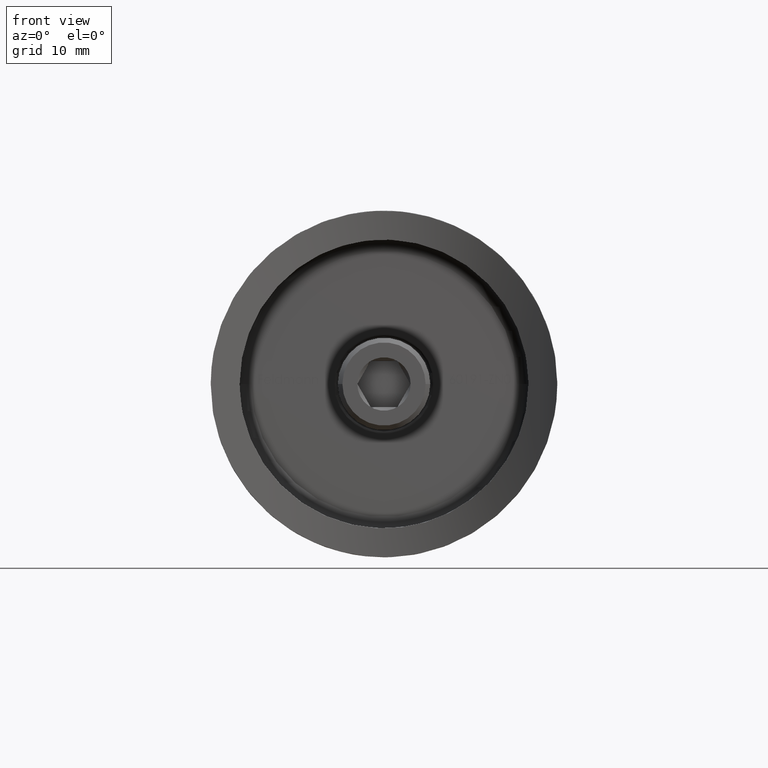
[diagram: clean part render]
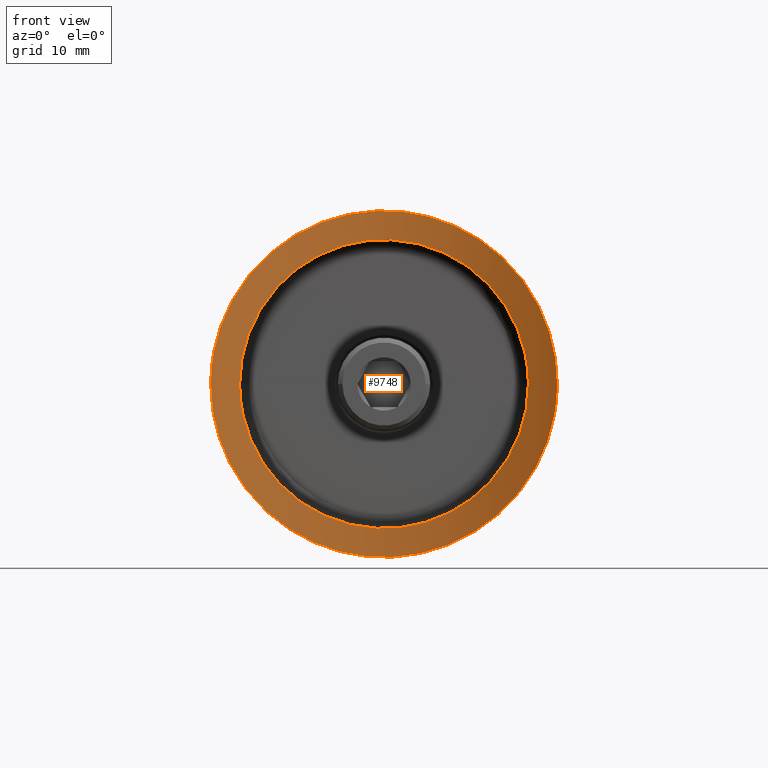
[diagram: same view with one face highlighted and labeled with its STEP entity id]
A machine part, front view. The second image highlights one B-rep face of the part: STEP entity #9748.
In plain terms, the highlighted cylindrical surface (partial cylindrical patch) has radius 21.2 mm, axis along (0, 0, 1).
Its self-contained STEP definition (entity closure, byte-faithful):
#99 = CARTESIAN_POINT ( 'NONE',  ( -9.247360983637173959, -2.103467087323838136, 11.84956196566221642 ) ) ;
#106 = CARTESIAN_POINT ( 'NONE',  ( -6.793287085050308427, -1.112716904579033494, -13.38246005369015279 ) ) ;
#199 = CARTESIAN_POINT ( 'NONE',  ( -1.036103655200694362, -0.0007744303460661392836, -14.99890547146903863 ) ) ;
#241 = CARTESIAN_POINT ( 'NONE',  ( -14.79309002106216475, -6.013676570960109657, 2.533536598195614165 ) ) ;
#284 = VERTEX_POINT ( 'NONE', #4385 ) ;
#296 = CARTESIAN_POINT ( 'NONE',  ( 11.30263597532529296, -3.260684741531254538, -9.872927816602436124 ) ) ;
#526 = CARTESIAN_POINT ( 'NONE',  ( 0.8364876894773611848, 0.0004464050162464019349, 12.50075710310782995 ) ) ;
#560 = VERTEX_POINT ( 'NONE', #10472 ) ;
#685 = CARTESIAN_POINT ( 'NONE',  ( -0.8589641378155458140, -0.0004523624545173044798, 12.49923279307553514 ) ) ;
#735 = CARTESIAN_POINT ( 'NONE',  ( 11.81956933681401090, -3.600006339396276012, 4.088991191509609990 ) ) ;
#820 = CARTESIAN_POINT ( 'NONE',  ( 13.41760145868459908, -4.783764563336502462, 6.722883565555990870 ) ) ;
#843 = ORIENTED_EDGE ( 'NONE', *, *, #7407, .T. ) ;
#1183 = CARTESIAN_POINT ( 'NONE',  ( -11.32118218139259191, -3.259145242482941018, 9.886381310683775681 ) ) ;
#1238 = CARTESIAN_POINT ( 'NONE',  ( -4.984309481093156080, -0.5884660627468247807, -14.15652354885131992 ) ) ;
#1369 = CARTESIAN_POINT ( 'NONE',  ( -9.977806632513969376, -2.478707036671748742, 11.24068842236448162 ) ) ;
#1382 = CARTESIAN_POINT ( 'NONE',  ( 10.98660614811948832, -3.064888731167211944, -10.22337507026552039 ) ) ;
#1469 = CARTESIAN_POINT ( 'NONE',  ( 13.99789364625555876, -5.276420133939977219, -5.412116096702529688 ) ) ;
#1518 = CARTESIAN_POINT ( 'NONE',  ( 1.266205355041107206, -0.03630233887626374556, -14.94866007219333781 ) ) ;
#1643 = CARTESIAN_POINT ( 'NONE',  ( 9.914473190374422984, -2.458995964235112019, 7.623289312353929148 ) ) ;
#1692 = CARTESIAN_POINT ( 'NONE',  ( -3.304356569119990983, -0.2552316089212756101, 12.06248241720208014 ) ) ;
#1703 = CARTESIAN_POINT ( 'NONE',  ( -12.50000000000000178, -4.077208171562678451, 1.530791408032014810E-15 ) ) ;
#1798 = CARTESIAN_POINT ( 'NONE',  ( 6.330762071407218805, -0.9547413152989590035, 10.80890744331405884 ) ) ;
#1807 = CARTESIAN_POINT ( 'NONE',  ( 9.921695963143253749, -2.457881125248752685, -7.646057704508282704 ) ) ;
#1850 = CARTESIAN_POINT ( 'NONE',  ( 5.616086685430340175, -0.7426856589785431062, 11.19739653768654719 ) ) ;
#1954 = CARTESIAN_POINT ( 'NONE',  ( -9.132977711352268102, -2.065621050082288246, -8.543844657703633771 ) ) ;
#2008 = VERTEX_POINT ( 'NONE', #2639 ) ;
#2256 = CARTESIAN_POINT ( 'NONE',  ( -1.005100079473335128, 0.0009410588674151550452, 15.00133003043902846 ) ) ;
#2263 = CARTESIAN_POINT ( 'NONE',  ( -10.98134059977257238, -3.061700629048576872, -10.22902124559073656 ) ) ;
#2305 = CARTESIAN_POINT ( 'NONE',  ( -6.790344218099431117, -1.094644267676415872, 13.41143013350196078 ) ) ;
#2312 = EDGE_LOOP ( 'NONE', ( #6485, #843 ) ) ;
#2349 = CARTESIAN_POINT ( 'NONE',  ( 1.050626157901719093, -0.01991855300508594065, 14.97188250659245234 ) ) ;
#2357 = CARTESIAN_POINT ( 'NONE',  ( -14.78614450649412682, -6.007473384273446015, -2.536635718239778292 ) ) ;
#2390 = DIRECTION ( 'NONE',  ( 1.000000000000000000, 0.000000000000000000, 0.000000000000000000 ) ) ;
#2401 = CARTESIAN_POINT ( 'NONE',  ( -13.99802631601504643, -5.276502016985037180, -5.412135210787639039 ) ) ;
#2438 = CARTESIAN_POINT ( 'NONE',  ( -13.62292504831276752, -4.954430224184656950, 6.297059881936443837 ) ) ;
#2443 = CARTESIAN_POINT ( 'NONE',  ( 14.97320424526893312, -6.191719379153870051, -1.029740930339562155 ) ) ;
#2543 = CARTESIAN_POINT ( 'NONE',  ( 14.58376615802573539, -5.812953263413651150, -3.518041817528173354 ) ) ;
#2589 = CARTESIAN_POINT ( 'NONE',  ( 9.973264478600162519, -2.487903390809075077, -11.21432605455396647 ) ) ;
#2630 = CARTESIAN_POINT ( 'NONE',  ( 14.79249594511518850, -6.013103956490017055, -2.536521336118941594 ) ) ;
#2639 = CARTESIAN_POINT ( 'NONE',  ( -15.00000000000000355, -6.218678295958000035, 1.799096609950244379E-15 ) ) ;
#2773 = CARTESIAN_POINT ( 'NONE',  ( 6.332477147048833466, -0.9555130321071549915, -10.80731723092417340 ) ) ;
#2818 = CARTESIAN_POINT ( 'NONE',  ( 10.82385150507188776, -2.964161621337963126, 6.303516461398699811 ) ) ;
#2826 = CARTESIAN_POINT ( 'NONE',  ( 10.82311573601574395, -2.963573911942929850, -6.305744600801080679 ) ) ;
#2926 = CARTESIAN_POINT ( 'NONE',  ( 8.572815172963569097, -1.808186575324009171, -9.105778739206952466 ) ) ;
#2970 = CARTESIAN_POINT ( 'NONE',  ( -9.917886729184012040, -2.455915680248248023, 7.650612990462792418 ) ) ;
#3041 = B_SPLINE_CURVE_WITH_KNOTS ( 'NONE', 3,
 ( #13375, #9041, #10063, #5560, #13471, #2357, #7793, #5745, #4540, #12316, #2401, #13519, #8909, #14418, #3470, #5652, #2263, #11146, #4502, #6761, #11241, #106, #7893, #4597, #1238, #8993, #3762, #5883, #199, #6953, #7988, #6858, #1518, #13660, #8119, #9277, #9138, #6905, #11527, #4735, #5978, #11478, #3563, #2589, #9093, #1382, #296, #9229, #11334, #8027, #3712, #1469, #4693, #10252, #10205, #2543, #8172, #2630, #7057, #2443, #12643, #12460 ),
 .UNSPECIFIED., .F., .F.,
 ( 4, 2, 2, 2, 2, 2, 2, 2, 2, 2, 2, 2, 2, 2, 2, 2, 2, 2, 2, 2, 2, 2, 2, 2, 2, 2, 2, 2, 2, 2, 4 ),
 ( 0.04870013911608973151, 0.05021988693317920582, 0.05097976084172394645, 0.05173963475026868014, 0.05325938256735816140, 0.05477913038444763572, 0.05781862601862658435, 0.05933837383571606561, 0.06085812165280553299, 0.06389761728698448162, 0.06541736510407396288, 0.06693711292116343026, 0.06845686073825291151, 0.06997660855534237889, 0.07301610418952132753, 0.07377597809806606122, 0.07453585200661080878, 0.07605559982370027616, 0.07757534764078974354, 0.07909509545787921092, 0.08213459109205815956, 0.08365433890914764081, 0.08517408672623710819, 0.08669383454332657557, 0.08821358236041607070, 0.09125307799459500546, 0.09277282581168447284, 0.09353269972022920653, 0.09429257362877394022, 0.09581232144586340760, 0.09733206926295287498 ),
 .UNSPECIFIED. ) ;
#3070 = CARTESIAN_POINT ( 'NONE',  ( -10.15029678505969812, -2.586093745295868107, -7.306357179505572397 ) ) ;
#3120 = CARTESIAN_POINT ( 'NONE',  ( -11.67547662238571959, -3.503719972888457157, -4.482977201973310066 ) ) ;
#3154 = CARTESIAN_POINT ( 'NONE',  ( 14.00305171526047232, -5.280944613301205237, 5.398952671795225200 ) ) ;
#3168 = CARTESIAN_POINT ( 'NONE',  ( -9.400507852522066443, -2.196003224771105433, -8.248663482543525660 ) ) ;
#3364 = CARTESIAN_POINT ( 'NONE',  ( 0.5320355225887009043, -0.0004841991488968378833, 14.99931566491221879 ) ) ;
#3462 = CARTESIAN_POINT ( 'NONE',  ( 5.699236886631593002, -0.7790748501655614389, 13.87729466244316079 ) ) ;
#3470 = CARTESIAN_POINT ( 'NONE',  ( -11.90151835592003060, -3.652250506909898498, -9.142201468282934229 ) ) ;
#3505 = CARTESIAN_POINT ( 'NONE',  ( -4.005033879452522427, -0.3759934740618178228, 14.46412745145087264 ) ) ;
#3563 = CARTESIAN_POINT ( 'NONE',  ( 9.241290292428232078, -2.115788787511440727, -11.82479035539435586 ) ) ;
#3712 = CARTESIAN_POINT ( 'NONE',  ( 13.43377556196558231, -4.792094488283050069, -6.742535343252500368 ) ) ;
#3762 = CARTESIAN_POINT ( 'NONE',  ( -3.535509830042500301, -0.2908456476318196371, -14.58623087621891123 ) ) ;
#3948 = CARTESIAN_POINT ( 'NONE',  ( 12.16703553193700316, -3.838737251354632285, 2.895587000546334444 ) ) ;
#4000 = CARTESIAN_POINT ( 'NONE',  ( -9.412360545666038192, -2.193905633885578688, 8.263981835864758096 ) ) ;
#4046 = CARTESIAN_POINT ( 'NONE',  ( 7.677584592285631615, -1.426185435189055273, 9.897763553005118453 ) ) ;
#4093 = CARTESIAN_POINT ( 'NONE',  ( 15.00000000000000178, -6.218678295958002700, 1.034344060573792135 ) ) ;
#4100 = CARTESIAN_POINT ( 'NONE',  ( -12.41440993766445189, -4.013857359421159288, 1.679475638683213923 ) ) ;
#4153 = CARTESIAN_POINT ( 'NONE',  ( -7.657783215492891316, -1.428566676989442730, -9.887831381975157541 ) ) ;
#4181 = CARTESIAN_POINT ( 'NONE',  ( 15.00000000000000711, -6.218678295957958291, 1.012818476025527101E-14 ) ) ;
#4225 = CARTESIAN_POINT ( 'NONE',  ( 10.32371503841146776, -2.679498512906845153, 10.89239739286136910 ) ) ;
#4236 = CARTESIAN_POINT ( 'NONE',  ( 12.33187756241080990, -3.955435823175239118, 2.084699858219267288 ) ) ;
#4244 = CARTESIAN_POINT ( 'NONE',  ( -12.50000000000001066, -4.077208171562496375, -0.8487430364366631563 ) ) ;
#4278 = CARTESIAN_POINT ( 'NONE',  ( 8.856195033793833105, -1.933633055654745192, 12.11594143917158739 ) ) ;
#4298 = CARTESIAN_POINT ( 'NONE',  ( -4.084322186922474174, -0.3932434817293214979, -11.82121978265571194 ) ) ;
#4385 = CARTESIAN_POINT ( 'NONE',  ( 12.49999999999999822, -4.077208171562670458, -2.539735531791139987E-15 ) ) ;
#4496 = CARTESIAN_POINT ( 'NONE',  ( 5.000757390721830120, -0.5968245632355041463, 14.14407592239056832 ) ) ;
#4502 = CARTESIAN_POINT ( 'NONE',  ( -9.258651972981740030, -2.108956545266313043, -11.84073691738115741 ) ) ;
#4535 = CARTESIAN_POINT ( 'NONE',  ( -5.427672039333993226, -0.7011243682898478102, 13.99229017852160695 ) ) ;
#4540 = CARTESIAN_POINT ( 'NONE',  ( -14.46426186399570391, -5.699511624603945670, -4.003697393095872137 ) ) ;
#4597 = CARTESIAN_POINT ( 'NONE',  ( -5.448681550746202085, -0.7067432484951983174, -13.98405675780512247 ) ) ;
#4638 = CARTESIAN_POINT ( 'NONE',  ( 6.830061313045299620, -1.108259818986123024, 13.39104156783523614 ) ) ;
#4685 = CARTESIAN_POINT ( 'NONE',  ( -4.961759016571151371, -0.5830047866001240031, 14.16447057848799851 ) ) ;
#4693 = CARTESIAN_POINT ( 'NONE',  ( 14.16667982109497181, -5.427063201692310379, -4.954909019241491741 ) ) ;
#4735 = CARTESIAN_POINT ( 'NONE',  ( 6.805837395638246079, -1.099760610903794289, -13.40379174466695567 ) ) ;
#4974 = CARTESIAN_POINT ( 'NONE',  ( -1.660420830508476886, -0.06098600344633579862, -12.39633220497209720 ) ) ;
#5061 = CARTESIAN_POINT ( 'NONE',  ( -12.06293509169512213, -3.765906836595545926, 3.302612425637190707 ) ) ;
#5069 = CARTESIAN_POINT ( 'NONE',  ( 8.277841407775241578, -1.680032598148464729, -9.374915397881402157 ) ) ;
#5115 = CARTESIAN_POINT ( 'NONE',  ( -7.659400604678979541, -1.419461113605394953, 9.910966035266708829 ) ) ;
#5122 = CARTESIAN_POINT ( 'NONE',  ( 12.41455994250098627, -4.013974898359021104, -1.677415078488689204 ) ) ;
#5157 = ORIENTED_EDGE ( 'NONE', *, *, #11328, .T. ) ;
#5161 = CARTESIAN_POINT ( 'NONE',  ( 11.67798937154660166, -3.505372729526122111, 4.476561059971755796 ) ) ;
#5171 = CARTESIAN_POINT ( 'NONE',  ( 4.111227917153257749, -0.3985133992347169585, -11.81195145108149269 ) ) ;
#5210 = CARTESIAN_POINT ( 'NONE',  ( -11.67712929274375178, -3.504802613424481184, 4.478832813254037148 ) ) ;
#5254 = CARTESIAN_POINT ( 'NONE',  ( 12.47839444042782375, -4.061377960056150371, 0.8447536554562086186 ) ) ;
#5347 = CARTESIAN_POINT ( 'NONE',  ( 12.71281392838358570, -4.231452424652480282, 7.975591587867550736 ) ) ;
#5560 = CARTESIAN_POINT ( 'NONE',  ( -14.89630095163684409, -6.115519239895382597, -1.779256862648070703 ) ) ;
#5652 = CARTESIAN_POINT ( 'NONE',  ( -11.29874611460838629, -3.258205561143912021, -9.877465418851025802 ) ) ;
#5696 = CARTESIAN_POINT ( 'NONE',  ( -14.48773947438725429, -5.720170169769271951, 4.015306362516247063 ) ) ;
#5741 = CARTESIAN_POINT ( 'NONE',  ( -15.00000000000000355, -6.218678295958000035, 1.799096609950244379E-15 ) ) ;
#5742 = B_SPLINE_CURVE_WITH_KNOTS ( 'NONE', 3,
 ( #13950, #10698, #5122, #9409, #11664, #11823, #2826, #1807, #11763, #2926, #5069, #6122, #12881, #2773, #9466, #9620, #5171, #7346, #12932, #12782, #10743, #10593, #13905, #4974, #8450, #11720, #9718, #4298, #11963, #11863, #9819, #6466, #4153, #7638, #6421, #1954, #3168, #8750, #3070, #7587, #14209, #3120, #10891, #12066, #10841, #7544, #4244, #8654 ),
 .UNSPECIFIED., .F., .F.,
 ( 4, 2, 2, 2, 2, 2, 2, 2, 2, 2, 2, 2, 2, 2, 2, 2, 2, 2, 2, 2, 2, 2, 2, 4 ),
 ( 3.442122328764663224E-18, 0.002502947823133303430, 0.005005895646266603390, 0.007508843469399903783, 0.01001179129253320331, 0.01126326520409984960, 0.01251473911566650110, 0.01501768693879979889, 0.01626916085036644866, 0.01752063476193310015, 0.02002358258506640315, 0.02127505649663305118, 0.02252653040819970268, 0.02377800431976635417, 0.02502947823133300220, 0.02753242605446630520, 0.02878389996603295323, 0.03003537387759959779, 0.03128684778916623888, 0.03253832170073288343, 0.03504126952386617949, 0.03629274343543282405, 0.03754421734699946861, 0.04004716517013276467 ),
 .UNSPECIFIED. ) ;
#5745 = CARTESIAN_POINT ( 'NONE',  ( -14.58918023883314952, -5.817685145585125284, -3.522469803270723343 ) ) ;
#5786 = CARTESIAN_POINT ( 'NONE',  ( 5.469162458992211207, -0.7161850585369443634, 13.96963564937746582 ) ) ;
#5883 = CARTESIAN_POINT ( 'NONE',  ( -2.043395127223919250, -0.07478288130568813696, -14.89484407722329884 ) ) ;
#5978 = CARTESIAN_POINT ( 'NONE',  ( 7.657464313295867520, -1.412054961352990246, -12.93443060298194425 ) ) ;
#6113 = CARTESIAN_POINT ( 'NONE',  ( -11.36141052027945619, -3.300455032068370986, 5.228158650827129605 ) ) ;
#6122 = CARTESIAN_POINT ( 'NONE',  ( 7.658181626422162935, -1.428706670570210058, -9.887565487340259196 ) ) ;
#6165 = CARTESIAN_POINT ( 'NONE',  ( -10.80199183774451654, -2.956988026750464016, 6.303179214469232683 ) ) ;
#6315 = CARTESIAN_POINT ( 'NONE',  ( 8.292590753440132190, -1.679334220573263536, 9.387140151929679988 ) ) ;
#6421 = CARTESIAN_POINT ( 'NONE',  ( -8.570666225862407117, -1.807232788485996000, -9.107812243117962225 ) ) ;
#6466 = CARTESIAN_POINT ( 'NONE',  ( -7.332818909338671531, -1.305368122057328995, -10.13134071192462748 ) ) ;
#6485 = ORIENTED_EDGE ( 'NONE', *, *, #10428, .T. ) ;
#6502 = CARTESIAN_POINT ( 'NONE',  ( 11.32166461596433393, -3.259760859046703096, 9.885017094419540129 ) ) ;
#6751 = CARTESIAN_POINT ( 'NONE',  ( -15.00000000000000711, -6.218678295957998259, 0.5077510589398881446 ) ) ;
#6761 = CARTESIAN_POINT ( 'NONE',  ( -8.067187927978842765, -1.590101400784742491, -12.65511361902888687 ) ) ;
#6802 = CARTESIAN_POINT ( 'NONE',  ( -3.510902656690084722, -0.2866766079428031966, 14.59220396397109454 ) ) ;
#6858 = CARTESIAN_POINT ( 'NONE',  ( 1.008248499793803044, -0.02243173643572620238, -14.96828248208485235 ) ) ;
#6900 = CARTESIAN_POINT ( 'NONE',  ( -7.657603035913631118, -1.412317715533601303, 12.93394447506753409 ) ) ;
#6905 = CARTESIAN_POINT ( 'NONE',  ( 4.966684803398809578, -0.5841713210080407004, -14.16277482169131297 ) ) ;
#6953 = CARTESIAN_POINT ( 'NONE',  ( 0.2390648060514578566, 0.0001860897397400146185, -15.00026300690780268 ) ) ;
#7057 = CARTESIAN_POINT ( 'NONE',  ( 14.86945668814089849, -6.088924910380897337, -2.038742149870386378 ) ) ;
#7191 = CARTESIAN_POINT ( 'NONE',  ( 4.105477495173058600, -0.3868504487605807229, 11.83499782074716400 ) ) ;
#7337 = CARTESIAN_POINT ( 'NONE',  ( -2.903471688877078627, -0.1957985904504492558, 12.16515510749631090 ) ) ;
#7346 = CARTESIAN_POINT ( 'NONE',  ( 3.313708303092455676, -0.2566627045589018885, -12.06000536283058899 ) ) ;
#7391 = CARTESIAN_POINT ( 'NONE',  ( -4.097214065288562246, -0.3957953241413608159, 11.81672929809248629 ) ) ;
#7407 = EDGE_CURVE ( 'NONE', #2008, #560, #3041, .T. ) ;
#7467 = ORIENTED_EDGE ( 'NONE', *, *, #14168, .T. ) ;
#7476 = CARTESIAN_POINT ( 'NONE',  ( 14.46728747188645414, -5.702331138794981769, 3.992967800225836861 ) ) ;
#7523 = CARTESIAN_POINT ( 'NONE',  ( 9.972360813657152434, -2.487381531895560105, 11.21521774658429216 ) ) ;
#7544 = CARTESIAN_POINT ( 'NONE',  ( -12.41450283951434841, -4.013914764371325106, -1.679989969878704636 ) ) ;
#7587 = CARTESIAN_POINT ( 'NONE',  ( -10.82258051932905119, -2.963337080554834468, -6.306129648196463933 ) ) ;
#7638 = CARTESIAN_POINT ( 'NONE',  ( -8.275886382900745630, -1.679218150928101450, -9.376596279630225794 ) ) ;
#7793 = CARTESIAN_POINT ( 'NONE',  ( -14.74131991220136051, -5.963910120161611594, -2.785045894624401885 ) ) ;
#7868 = CYLINDRICAL_SURFACE ( 'NONE', #14299, 21.19999999999999929 ) ;
#7893 = CARTESIAN_POINT ( 'NONE',  ( -6.353173020976148777, -0.9688632180472865896, -13.59702785951760973 ) ) ;
#7988 = CARTESIAN_POINT ( 'NONE',  ( 0.4949077104678341610, -0.004221435545693257886, -14.99403587627241308 ) ) ;
#8027 = CARTESIAN_POINT ( 'NONE',  ( 12.98143946857647890, -4.426526246616926841, -7.575118755031469142 ) ) ;
#8119 = CARTESIAN_POINT ( 'NONE',  ( 2.533229907551790117, -0.1459708485783547949, -14.79315491954342932 ) ) ;
#8172 = CARTESIAN_POINT ( 'NONE',  ( 14.64052560288260985, -5.867030718024774494, -3.273832504122290210 ) ) ;
#8305 = CARTESIAN_POINT ( 'NONE',  ( 3.300318739173963678, -0.2423808493236296324, 12.08511028713730084 ) ) ;
#8351 = CARTESIAN_POINT ( 'NONE',  ( 9.404630617369010182, -2.198028158581689873, 8.244042790606330939 ) ) ;
#8363 = B_SPLINE_CURVE_WITH_KNOTS ( 'NONE', 3,
 ( #4181, #4093, #9802, #13111, #7476, #11849, #3154, #11999, #820, #13057, #5347, #14192, #6502, #4225, #7523, #8637, #4278, #9082, #4638, #3462, #5786, #4496, #9036, #11236, #13557, #13463, #10013, #2349, #3364, #2256, #11322, #6802, #3505, #4685, #4535, #2305, #6900, #99, #1369, #1183, #8940, #12454, #12360, #11138, #2438, #12409, #5696, #241, #10198, #11187, #6751, #5741 ),
 .UNSPECIFIED., .F., .F.,
 ( 4, 2, 2, 2, 2, 2, 2, 2, 2, 2, 2, 2, 2, 2, 2, 2, 2, 2, 2, 2, 2, 2, 2, 2, 2, 4 ),
 ( 1.462246867263063944E-17, 0.003043758694755619495, 0.004565638042133422086, 0.006087517389511225112, 0.007609396736889029005, 0.009131276084266830295, 0.01217503477902243808, 0.01369691412640023850, 0.01521879347377804240, 0.01826255216853364324, 0.01902349184222254519, 0.01978443151591144714, 0.02130631086328925103, 0.02282819021066705145, 0.02435006955804485534, 0.02739382825280046313, 0.02891570760017826702, 0.03043758694755607092, 0.03348134564231167870, 0.03652510433706729343, 0.03956886303182290121, 0.04109074237920070510, 0.04261262172657851593, 0.04565638042133412372, 0.04717825976871192761, 0.04870013911608973151 ),
 .UNSPECIFIED. ) ;
#8442 = CARTESIAN_POINT ( 'NONE',  ( 1.669804141140354803, -0.04992533405212082331, 12.41586680673746557 ) ) ;
#8450 = CARTESIAN_POINT ( 'NONE',  ( -2.072732177878312321, -0.09758354423414458689, -12.33395623446778622 ) ) ;
#8458 = B_SPLINE_CURVE_WITH_KNOTS ( 'NONE', 3,
 ( #10690, #13898, #4100, #10632, #5061, #14053, #5210, #6113, #11855, #6165, #10527, #2970, #4000, #11754, #5115, #12824, #12874, #10735, #7391, #1692, #7337, #12968, #685, #526, #8442, #8305, #7191, #1850, #1798, #4046, #6315, #9458, #8351, #1643, #11812, #2818, #10582, #5161, #735, #8497, #3948, #4236, #11906, #5254, #9810, #11957 ),
 .UNSPECIFIED., .F., .F.,
 ( 4, 2, 2, 2, 2, 2, 2, 2, 2, 2, 2, 2, 2, 2, 2, 2, 2, 2, 2, 2, 2, 2, 4 ),
 ( 0.04004716517013276467, 0.04254536742155973217, 0.04379446854727321592, 0.04504356967298669967, 0.04629267079870018342, 0.04754177192441366717, 0.05003997417584064855, 0.05253817642726762299, 0.05503637867869459743, 0.05628547980440808118, 0.05753458093012157881, 0.06003278318154855325, 0.06253098543297552769, 0.06502918768440250907, 0.06752738993582949045, 0.07002559218725647183, 0.07127469331296995558, 0.07252379443868345321, 0.07502199669011042071, 0.07627109781582390446, 0.07752019894153738822, 0.07876930006725088584, 0.08001840119296436959 ),
 .UNSPECIFIED. ) ;
#8497 = CARTESIAN_POINT ( 'NONE',  ( 12.06465259715028893, -3.767095655883383909, 3.296395907968563410 ) ) ;
#8637 = CARTESIAN_POINT ( 'NONE',  ( 9.237072866227267198, -2.113707667684220137, 11.82816867334382493 ) ) ;
#8654 = CARTESIAN_POINT ( 'NONE',  ( -12.50000000000000178, -4.077208171562678451, 1.530791408032014810E-15 ) ) ;
#8750 = CARTESIAN_POINT ( 'NONE',  ( -9.908645367881296906, -2.455929249711956253, -7.630776114337303184 ) ) ;
#8909 = CARTESIAN_POINT ( 'NONE',  ( -12.97442884682508613, -4.421191243973228602, -7.586623839518964019 ) ) ;
#8940 = CARTESIAN_POINT ( 'NONE',  ( -11.91801986090202981, -3.655072002882634230, 9.157063860970918512 ) ) ;
#8993 = CARTESIAN_POINT ( 'NONE',  ( -4.029562517969204727, -0.3807469355014520551, -14.45728625663456057 ) ) ;
#9036 = CARTESIAN_POINT ( 'NONE',  ( 4.761877183333218078, -0.5402606647149540420, 14.22630801687191848 ) ) ;
#9041 = CARTESIAN_POINT ( 'NONE',  ( -15.00000000000001066, -6.218678295957998259, -0.5070399074527957017 ) ) ;
#9082 = CARTESIAN_POINT ( 'NONE',  ( 7.672812205234291305, -1.418486010766925931, 12.92442890805342692 ) ) ;
#9093 = CARTESIAN_POINT ( 'NONE',  ( 10.32191875215100474, -2.678505226066752787, -10.89407663619167188 ) ) ;
#9138 = CARTESIAN_POINT ( 'NONE',  ( 4.008393155476375647, -0.3766204863622057419, -14.46322691854677522 ) ) ;
#9229 = CARTESIAN_POINT ( 'NONE',  ( 11.90292829232051020, -3.653236480726055557, -9.140272519484062386 ) ) ;
#9277 = CARTESIAN_POINT ( 'NONE',  ( 3.521786645304551211, -0.2886055917262704273, -14.58943813390636279 ) ) ;
#9409 = CARTESIAN_POINT ( 'NONE',  ( 12.08501816055483857, -3.780668973257218735, -3.299599365158000452 ) ) ;
#9458 = CARTESIAN_POINT ( 'NONE',  ( 9.136534688933114268, -2.067315992079089337, 8.540058506059816423 ) ) ;
#9466 = CARTESIAN_POINT ( 'NONE',  ( 5.624990575222196476, -0.7452811564522435761, -11.19264159604015774 ) ) ;
#9596 = FACE_OUTER_BOUND ( 'NONE', #2312, .T. ) ;
#9620 = CARTESIAN_POINT ( 'NONE',  ( 4.497950466487392163, -0.4790576448365310713, -11.66982766874526867 ) ) ;
#9718 = CARTESIAN_POINT ( 'NONE',  ( -3.289639034843816034, -0.2528980630346291392, -12.06653222333863695 ) ) ;
#9748 = ADVANCED_FACE ( 'NONE', ( #9596, #12905 ), #7868, .F. ) ;
#9802 = CARTESIAN_POINT ( 'NONE',  ( 14.89436902615569025, -6.111077526726038656, 2.038798103600116818 ) ) ;
#9810 = CARTESIAN_POINT ( 'NONE',  ( 12.50000000000000000, -4.077208171562679340, 0.4234813879121457902 ) ) ;
#9819 = CARTESIAN_POINT ( 'NONE',  ( -6.325162137555070174, -0.9530553712993529158, -10.81200791003522887 ) ) ;
#10013 = CARTESIAN_POINT ( 'NONE',  ( 2.067014922011603417, -0.09485572811247361402, 14.86568297882939227 ) ) ;
#10063 = CARTESIAN_POINT ( 'NONE',  ( -14.97436008870894497, -6.192871450257608323, -1.015228069819027468 ) ) ;
#10198 = CARTESIAN_POINT ( 'NONE',  ( -14.87132796809171964, -6.090769140047494368, 2.025277182573650858 ) ) ;
#10205 = CARTESIAN_POINT ( 'NONE',  ( 14.45805404363088797, -5.694771336825826147, -4.003439377997675130 ) ) ;
#10252 = CARTESIAN_POINT ( 'NONE',  ( 14.38893493582129857, -5.630522182426658695, -4.245001360223138676 ) ) ;
#10428 = EDGE_CURVE ( 'NONE', #560, #2008, #8363, .T. ) ;
#10472 = CARTESIAN_POINT ( 'NONE',  ( 15.00000000000000711, -6.218678295957958291, 1.012818476025527101E-14 ) ) ;
#10527 = CARTESIAN_POINT ( 'NONE',  ( -10.59165592776845877, -2.833641671591800915, 6.650444630508390631 ) ) ;
#10528 = VERTEX_POINT ( 'NONE', #1703 ) ;
#10582 = CARTESIAN_POINT ( 'NONE',  ( 11.20502636231348603, -3.199209344262886390, 5.599778831552474578 ) ) ;
#10593 = CARTESIAN_POINT ( 'NONE',  ( -0.3997525628056072811, 0.0004097840095171036904, -12.50069499433881326 ) ) ;
#10632 = CARTESIAN_POINT ( 'NONE',  ( -12.16629048457322426, -3.838213107929845602, 2.898866843321906472 ) ) ;
#10690 = CARTESIAN_POINT ( 'NONE',  ( -12.50000000000000178, -4.077208171562678451, 1.530791408032014810E-15 ) ) ;
#10698 = CARTESIAN_POINT ( 'NONE',  ( 12.50000000000000355, -4.077208171562681116, -0.8485716618073883000 ) ) ;
#10728 = EDGE_LOOP ( 'NONE', ( #5157, #7467 ) ) ;
#10735 = CARTESIAN_POINT ( 'NONE',  ( -4.489506994984124866, -0.4771922500288920954, 11.67314426038796071 ) ) ;
#10743 = CARTESIAN_POINT ( 'NONE',  ( 0.8630191910266065136, -0.0008512821504078830603, -12.49855622413039136 ) ) ;
#10841 = CARTESIAN_POINT ( 'NONE',  ( -12.16537212360689146, -3.837567200596012640, -2.902892153864687685 ) ) ;
#10891 = CARTESIAN_POINT ( 'NONE',  ( -11.81590080567547929, -3.597542603682016615, -4.099475678421446112 ) ) ;
#11138 = CARTESIAN_POINT ( 'NONE',  ( -13.41123871904281906, -4.778559293863404278, 6.735564131868740922 ) ) ;
#11146 = CARTESIAN_POINT ( 'NONE',  ( -9.984243410070513747, -2.482471710123043351, -11.23413332537510811 ) ) ;
#11187 = CARTESIAN_POINT ( 'NONE',  ( -14.97428582564953281, -6.192801169917168558, 1.014350635900573616 ) ) ;
#11229 = DIRECTION ( 'NONE',  ( -0.000000000000000000, -0.000000000000000000, 1.000000000000000000 ) ) ;
#11236 = CARTESIAN_POINT ( 'NONE',  ( 4.042126730826350212, -0.3831215996193665929, 14.45387380227851182 ) ) ;
#11241 = CARTESIAN_POINT ( 'NONE',  ( -7.650236705005002413, -1.423206277738283898, -12.91173361194839764 ) ) ;
#11322 = CARTESIAN_POINT ( 'NONE',  ( -2.015669960544157036, -0.07202788547275754127, 14.89874124124950505 ) ) ;
#11328 = EDGE_CURVE ( 'NONE', #284, #10528, #5742, .T. ) ;
#11334 = CARTESIAN_POINT ( 'NONE',  ( 12.18799180390457693, -3.850658401659984076, -8.756592059428195185 ) ) ;
#11478 = CARTESIAN_POINT ( 'NONE',  ( 8.856219382496485437, -1.933519771645568097, -12.11616448932097079 ) ) ;
#11527 = CARTESIAN_POINT ( 'NONE',  ( 5.439659306910876957, -0.7042719533204057081, -13.98768639097636424 ) ) ;
#11664 = CARTESIAN_POINT ( 'NONE',  ( 11.83666578411300918, -3.608112675469436148, -4.099317946374343435 ) ) ;
#11720 = CARTESIAN_POINT ( 'NONE',  ( -2.887341660598332194, -0.1935377302896859331, -12.16905720300271199 ) ) ;
#11754 = CARTESIAN_POINT ( 'NONE',  ( -8.285911549510654339, -1.676480238211580653, 9.393061088846341278 ) ) ;
#11763 = CARTESIAN_POINT ( 'NONE',  ( 9.415575042610408119, -2.195545307325305284, -8.260170238301586920 ) ) ;
#11812 = CARTESIAN_POINT ( 'NONE',  ( 10.15490571586092550, -2.588624967614356454, 7.299856861454064649 ) ) ;
#11823 = CARTESIAN_POINT ( 'NONE',  ( 11.20589920001390638, -3.199750567203281548, -5.598114649539270182 ) ) ;
#11849 = CARTESIAN_POINT ( 'NONE',  ( 14.17178385825920373, -5.431655470514662021, 4.940317896919887097 ) ) ;
#11855 = CARTESIAN_POINT ( 'NONE',  ( -11.18632767022864982, -3.190097535713804611, 5.592778301228561233 ) ) ;
#11863 = CARTESIAN_POINT ( 'NONE',  ( -5.612463922427939345, -0.7416168452132682054, -11.19935645945867186 ) ) ;
#11906 = CARTESIAN_POINT ( 'NONE',  ( 12.39433659822114819, -4.000490892791593645, 1.674621401780844732 ) ) ;
#11957 = CARTESIAN_POINT ( 'NONE',  ( 12.49999999999999822, -4.077208171562670458, -2.539735531791139987E-15 ) ) ;
#11963 = CARTESIAN_POINT ( 'NONE',  ( -4.476566234661102150, -0.4743720747996067466, -11.67815006083307772 ) ) ;
#11999 = CARTESIAN_POINT ( 'NONE',  ( 13.62596788605661224, -4.957008252381672975, 6.290242162325557551 ) ) ;
#12066 = CARTESIAN_POINT ( 'NONE',  ( -12.06114128497305771, -3.764665499547461103, -3.309091052154641943 ) ) ;
#12316 = CARTESIAN_POINT ( 'NONE',  ( -14.16920999572879580, -5.429346898654838327, -4.947519801138966500 ) ) ;
#12360 = CARTESIAN_POINT ( 'NONE',  ( -12.95448349873012894, -4.415888580998934998, 7.576972049229076411 ) ) ;
#12409 = CARTESIAN_POINT ( 'NONE',  ( -14.19244727420515595, -5.443574732185075149, 4.952033974385715354 ) ) ;
#12454 = CARTESIAN_POINT ( 'NONE',  ( -12.70846394514502009, -4.228233205933711325, 7.982336634384554763 ) ) ;
#12460 = CARTESIAN_POINT ( 'NONE',  ( 15.00000000000000711, -6.218678295957958291, 1.012818476025527101E-14 ) ) ;
#12643 = CARTESIAN_POINT ( 'NONE',  ( 15.00000000000000178, -6.218678295958000923, -0.5164476838735398978 ) ) ;
#12782 = CARTESIAN_POINT ( 'NONE',  ( 1.690154089136590487, -0.05161972978194997314, -12.41298781756334790 ) ) ;
#12824 = CARTESIAN_POINT ( 'NONE',  ( -6.329542528444986438, -0.9546788704221319533, 10.80881847177448662 ) ) ;
#12874 = CARTESIAN_POINT ( 'NONE',  ( -5.622003884004054264, -0.7443208685377689093, 11.19441611945894266 ) ) ;
#12881 = CARTESIAN_POINT ( 'NONE',  ( 7.333175704000705508, -1.305543135158893531, -10.13097365662281391 ) ) ;
#12905 = FACE_BOUND ( 'NONE', #10728, .T. ) ;
#12932 = CARTESIAN_POINT ( 'NONE',  ( 2.909921039371532903, -0.1966666509976027766, -12.16365822421952458 ) ) ;
#12968 = CARTESIAN_POINT ( 'NONE',  ( -1.687412625807633404, -0.05149798604163407373, 12.41318755116838091 ) ) ;
#13057 = CARTESIAN_POINT ( 'NONE',  ( 12.96159531450897262, -4.421386776048494838, 7.564802657242080564 ) ) ;
#13111 = CARTESIAN_POINT ( 'NONE',  ( 14.59274859546300895, -5.821081281424335785, 3.507338025946418192 ) ) ;
#13355 = CARTESIAN_POINT ( 'NONE',  ( 0.000000000000000000, -21.19999999999999929, -15.00000000000000178 ) ) ;
#13375 = CARTESIAN_POINT ( 'NONE',  ( -15.00000000000000355, -6.218678295958000035, 1.799096609950244379E-15 ) ) ;
#13463 = CARTESIAN_POINT ( 'NONE',  ( 2.567833236126266794, -0.1501723778681148258, 14.78717851802791294 ) ) ;
#13471 = CARTESIAN_POINT ( 'NONE',  ( -14.86358977779380908, -6.083233373040731529, -2.034278508818174735 ) ) ;
#13519 = CARTESIAN_POINT ( 'NONE',  ( -13.42880215636750663, -4.787888993768496526, -6.753596507041867980 ) ) ;
#13557 = CARTESIAN_POINT ( 'NONE',  ( 3.555390056605915117, -0.2943019251829576688, 14.58127626780210129 ) ) ;
#13660 = CARTESIAN_POINT ( 'NONE',  ( 2.031282301831832449, -0.09134322178170757589, -14.87066737005278760 ) ) ;
#13898 = CARTESIAN_POINT ( 'NONE',  ( -12.50000000000000711, -4.077208171562498151, 0.8471338255284840413 ) ) ;
#13905 = CARTESIAN_POINT ( 'NONE',  ( -0.8254145584992866880, -0.01194674144187436553, -12.47977324621854933 ) ) ;
#13950 = CARTESIAN_POINT ( 'NONE',  ( 12.49999999999999822, -4.077208171562670458, -2.539735531791139987E-15 ) ) ;
#14053 = CARTESIAN_POINT ( 'NONE',  ( -11.81777214489814831, -3.598799217440165066, 4.094131579675016397 ) ) ;
#14168 = EDGE_CURVE ( 'NONE', #10528, #284, #8458, .T. ) ;
#14192 = CARTESIAN_POINT ( 'NONE',  ( 11.91754901232678421, -3.654601608486284015, 9.158319832559740803 ) ) ;
#14209 = CARTESIAN_POINT ( 'NONE',  ( -11.20374543612778773, -3.198433045044803080, -5.601914317052424153 ) ) ;
#14299 = AXIS2_PLACEMENT_3D ( 'NONE', #13355, #11229, #2390 ) ;
#14418 = CARTESIAN_POINT ( 'NONE',  ( -12.18356288479556859, -3.847569270404973985, -8.762645817796876457 ) ) ;